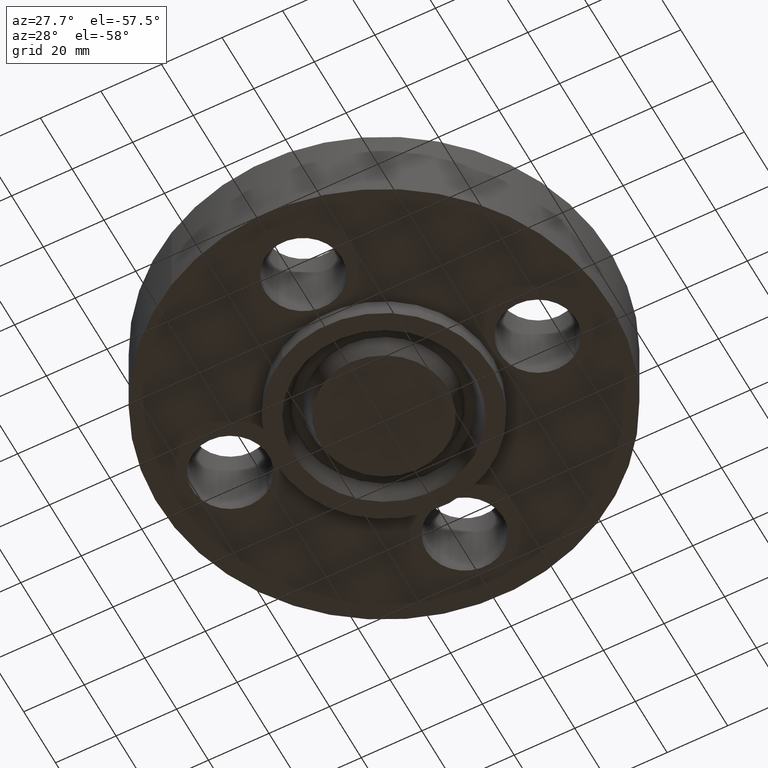
[diagram: clean part render]
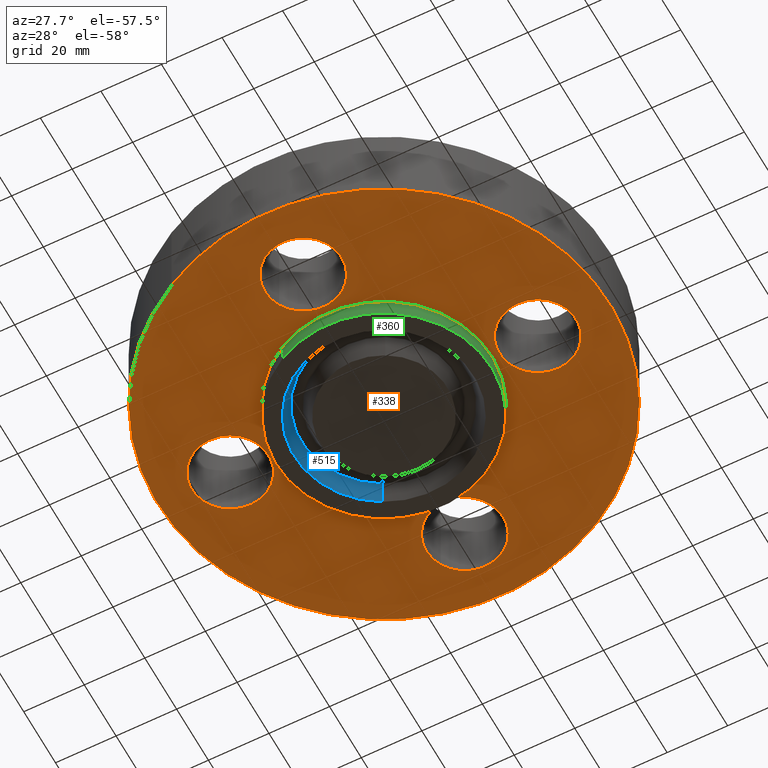
[diagram: same view with three faces highlighted in distinct colors, each labeled with its STEP entity id]
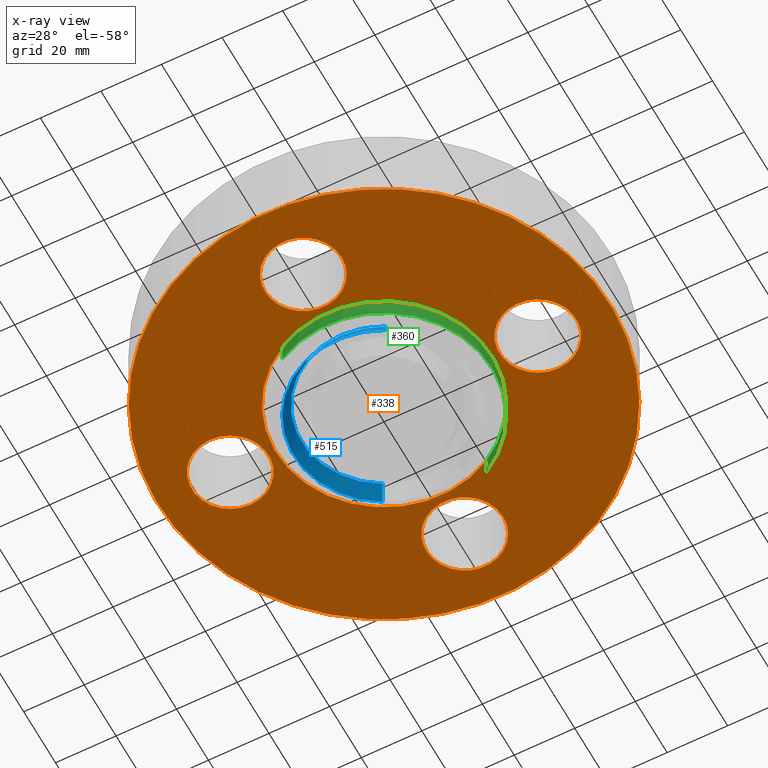
[diagram: x-ray of the same camera — body ghosted, the three highlighted faces saturated]
A machine part, auxiliary view with three faces highlighted in distinct colors.
The next image is the same camera in x-ray (body ghosted, the three faces saturated) — at least one of them is partly hidden behind the body in this view.
Their STEP definitions:

[orange] entity #338 — the highlighted planar face has unit normal (0, 0, -1).
#112=AXIS2_PLACEMENT_3D('Circle Axis2P3D',#110,#111,$) ;
#138=AXIS2_PLACEMENT_3D('Circle Axis2P3D',#136,#137,$) ;
#169=AXIS2_PLACEMENT_3D('Circle Axis2P3D',#167,#168,$) ;
#195=AXIS2_PLACEMENT_3D('Circle Axis2P3D',#193,#194,$) ;
#226=AXIS2_PLACEMENT_3D('Circle Axis2P3D',#224,#225,$) ;
#252=AXIS2_PLACEMENT_3D('Circle Axis2P3D',#250,#251,$) ;
#270=AXIS2_PLACEMENT_3D('Plane Axis2P3D',#267,#268,#269) ;
#274=AXIS2_PLACEMENT_3D('Circle Axis2P3D',#272,#273,$) ;
#283=AXIS2_PLACEMENT_3D('Circle Axis2P3D',#281,#282,$) ;
#292=AXIS2_PLACEMENT_3D('Circle Axis2P3D',#290,#291,$) ;
#301=AXIS2_PLACEMENT_3D('Circle Axis2P3D',#299,#300,$) ;
#310=AXIS2_PLACEMENT_3D('Circle Axis2P3D',#308,#309,$) ;
#319=AXIS2_PLACEMENT_3D('Circle Axis2P3D',#317,#318,$) ;
#105=CARTESIAN_POINT('Vertex',(1.7602872307,-0.438791280947,0.)) ;
#110=CARTESIAN_POINT('Axis2P3D Location',(2.00000000001,1.22464679915E-016,0.)) ;
#114=CARTESIAN_POINT('Vertex',(2.23971276931,0.438791280947,0.)) ;
#136=CARTESIAN_POINT('Axis2P3D Location',(2.00000000001,1.22464679915E-016,0.)) ;
#162=CARTESIAN_POINT('Vertex',(-0.438791280947,-1.7602872307,0.)) ;
#167=CARTESIAN_POINT('Axis2P3D Location',(2.4492935983E-016,-2.00000000001,0.)) ;
#171=CARTESIAN_POINT('Vertex',(0.438791280947,-2.23971276931,0.)) ;
#193=CARTESIAN_POINT('Axis2P3D Location',(2.4492935983E-016,-2.00000000001,0.)) ;
#219=CARTESIAN_POINT('Vertex',(-1.7602872307,0.438791280947,0.)) ;
#224=CARTESIAN_POINT('Axis2P3D Location',(-2.00000000001,-3.67394039746E-016,0.)) ;
#228=CARTESIAN_POINT('Vertex',(-2.23971276931,-0.438791280947,0.)) ;
#250=CARTESIAN_POINT('Axis2P3D Location',(-2.00000000001,-3.67394039746E-016,0.)) ;
#267=CARTESIAN_POINT('Axis2P3D Location',(0.,1.40650000001,0.)) ;
#272=CARTESIAN_POINT('Axis2P3D Location',(0.,0.,0.)) ;
#276=CARTESIAN_POINT('Vertex',(-1.4095110835,-2.58009273197,2.09805925913E-016)) ;
#278=CARTESIAN_POINT('Vertex',(1.4095110835,2.58009273197,2.09805925913E-016)) ;
#281=CARTESIAN_POINT('Axis2P3D Location',(0.,0.,0.)) ;
#290=CARTESIAN_POINT('Axis2P3D Location',(0.,2.00000000001,0.)) ;
#294=CARTESIAN_POINT('Vertex',(0.438791280947,1.7602872307,0.)) ;
#296=CARTESIAN_POINT('Vertex',(-0.438791280947,2.23971276931,0.)) ;
#299=CARTESIAN_POINT('Axis2P3D Location',(5.24514814784E-017,2.00000000001,0.)) ;
#308=CARTESIAN_POINT('Axis2P3D Location',(0.,0.,0.)) ;
#312=CARTESIAN_POINT('Vertex',(0.67431202005,1.2343198733,6.99353086378E-017)) ;
#314=CARTESIAN_POINT('Vertex',(-0.67431202005,-1.2343198733,6.99353086378E-017)) ;
#317=CARTESIAN_POINT('Axis2P3D Location',(0.,0.,0.)) ;
#111=DIRECTION('Axis2P3D Direction',(0.,-0.,-0.0393700787402)) ;
#137=DIRECTION('Axis2P3D Direction',(0.,-0.,-0.0393700787402)) ;
#168=DIRECTION('Axis2P3D Direction',(-0.,0.,-0.0393700787402)) ;
#194=DIRECTION('Axis2P3D Direction',(-0.,0.,-0.0393700787402)) ;
#225=DIRECTION('Axis2P3D Direction',(0.,0.,-0.0393700787402)) ;
#251=DIRECTION('Axis2P3D Direction',(0.,0.,-0.0393700787402)) ;
#268=DIRECTION('Axis2P3D Direction',(0.,0.,-0.0393700787402)) ;
#269=DIRECTION('Axis2P3D XDirection',(0.0393700787402,0.,0.)) ;
#273=DIRECTION('Axis2P3D Direction',(0.,0.,-0.0393700787402)) ;
#282=DIRECTION('Axis2P3D Direction',(0.,0.,-0.0393700787402)) ;
#291=DIRECTION('Axis2P3D Direction',(0.,0.,-0.0393700787402)) ;
#300=DIRECTION('Axis2P3D Direction',(0.,0.,-0.0393700787402)) ;
#309=DIRECTION('Axis2P3D Direction',(0.,0.,-0.0393700787402)) ;
#318=DIRECTION('Axis2P3D Direction',(0.,0.,-0.0393700787402)) ;
#287=ORIENTED_EDGE('',*,*,#280,.T.) ;
#288=ORIENTED_EDGE('',*,*,#285,.T.) ;
#305=ORIENTED_EDGE('',*,*,#298,.F.) ;
#306=ORIENTED_EDGE('',*,*,#303,.F.) ;
#323=ORIENTED_EDGE('',*,*,#316,.F.) ;
#324=ORIENTED_EDGE('',*,*,#321,.F.) ;
#327=ORIENTED_EDGE('',*,*,#140,.F.) ;
#328=ORIENTED_EDGE('',*,*,#116,.F.) ;
#331=ORIENTED_EDGE('',*,*,#197,.F.) ;
#332=ORIENTED_EDGE('',*,*,#173,.F.) ;
#335=ORIENTED_EDGE('',*,*,#254,.F.) ;
#336=ORIENTED_EDGE('',*,*,#230,.F.) ;
#307=FACE_BOUND('',#304,.T.) ;
#325=FACE_BOUND('',#322,.T.) ;
#329=FACE_BOUND('',#326,.T.) ;
#333=FACE_BOUND('',#330,.T.) ;
#337=FACE_BOUND('',#334,.T.) ;
#338=ADVANCED_FACE('PartBody',(#289,#307,#325,#329,#333,#337),#271,.T.) ;
#113=CIRCLE('generated circle',#112,0.500000000002) ;
#139=CIRCLE('generated circle',#138,0.500000000002) ;
#170=CIRCLE('generated circle',#169,0.500000000002) ;
#196=CIRCLE('generated circle',#195,0.500000000002) ;
#227=CIRCLE('generated circle',#226,0.500000000002) ;
#253=CIRCLE('generated circle',#252,0.500000000002) ;
#275=CIRCLE('generated circle',#274,2.94000000001) ;
#284=CIRCLE('generated circle',#283,2.94000000001) ;
#293=CIRCLE('generated circle',#292,0.500000000002) ;
#302=CIRCLE('generated circle',#301,0.500000000002) ;
#311=CIRCLE('generated circle',#310,1.40650000001) ;
#320=CIRCLE('generated circle',#319,1.40650000001) ;
#116=EDGE_CURVE('',#106,#115,#113,.T.) ;
#140=EDGE_CURVE('',#115,#106,#139,.T.) ;
#173=EDGE_CURVE('',#163,#172,#170,.T.) ;
#197=EDGE_CURVE('',#172,#163,#196,.T.) ;
#230=EDGE_CURVE('',#220,#229,#227,.T.) ;
#254=EDGE_CURVE('',#229,#220,#253,.T.) ;
#280=EDGE_CURVE('',#277,#279,#275,.T.) ;
#285=EDGE_CURVE('',#279,#277,#284,.T.) ;
#298=EDGE_CURVE('',#295,#297,#293,.T.) ;
#303=EDGE_CURVE('',#297,#295,#302,.T.) ;
#316=EDGE_CURVE('',#313,#315,#311,.T.) ;
#321=EDGE_CURVE('',#315,#313,#320,.T.) ;
#286=EDGE_LOOP('',(#287,#288)) ;
#304=EDGE_LOOP('',(#305,#306)) ;
#322=EDGE_LOOP('',(#323,#324)) ;
#326=EDGE_LOOP('',(#327,#328)) ;
#330=EDGE_LOOP('',(#331,#332)) ;
#334=EDGE_LOOP('',(#335,#336)) ;
#289=FACE_OUTER_BOUND('',#286,.T.) ;
#271=PLANE('',#270) ;
#106=VERTEX_POINT('',#105) ;
#115=VERTEX_POINT('',#114) ;
#163=VERTEX_POINT('',#162) ;
#172=VERTEX_POINT('',#171) ;
#220=VERTEX_POINT('',#219) ;
#229=VERTEX_POINT('',#228) ;
#277=VERTEX_POINT('',#276) ;
#279=VERTEX_POINT('',#278) ;
#295=VERTEX_POINT('',#294) ;
#297=VERTEX_POINT('',#296) ;
#313=VERTEX_POINT('',#312) ;
#315=VERTEX_POINT('',#314) ;

[blue] entity #515 — the highlighted conical surface has half-angle 23 deg.
#79=AXIS2_PLACEMENT_3D('Circle Axis2P3D',#77,#78,$) ;
#461=AXIS2_PLACEMENT_3D('Circle Axis2P3D',#459,#460,$) ;
#497=AXIS2_PLACEMENT_3D('Cone Axis2P3D',#494,#495,#496) ;
#77=CARTESIAN_POINT('Axis2P3D Location',(-1.04902962957E-016,2.79741234551E-016,-0.250000000001)) ;
#81=CARTESIAN_POINT('Vertex',(0.561886731246,-1.02852676254,-0.250000000001)) ;
#83=CARTESIAN_POINT('Vertex',(-0.561886731246,1.02852676254,-0.250000000001)) ;
#459=CARTESIAN_POINT('Axis2P3D Location',(0.,0.,-0.0188873350169)) ;
#463=CARTESIAN_POINT('Vertex',(-0.514854363898,0.942434591585,-0.0188873350169)) ;
#465=CARTESIAN_POINT('Vertex',(0.514854363898,-0.942434591585,-0.0188873350169)) ;
#494=CARTESIAN_POINT('Axis2P3D Location',(0.,0.,-0.0188873350169)) ;
#499=CARTESIAN_POINT('Line Origine',(-0.538370547572,0.985480677062,-0.134443667509)) ;
#504=CARTESIAN_POINT('Line Origine',(0.538370547572,-0.985480677062,-0.134443667509)) ;
#78=DIRECTION('Axis2P3D Direction',(0.,0.,-0.0393700787402)) ;
#460=DIRECTION('Axis2P3D Direction',(0.,0.,0.0393700787402)) ;
#495=DIRECTION('Axis2P3D Direction',(-0.,-0.,-0.0393700787402)) ;
#496=DIRECTION('Axis2P3D XDirection',(-0.0188750212049,0.0345504945626,0.)) ;
#500=DIRECTION('Vector Direction',(-0.00737505833565,0.0134999537303,-0.0362403485611)) ;
#505=DIRECTION('Vector Direction',(0.00737505833565,-0.0134999537303,-0.0362403485611)) ;
#501=VECTOR('Line Direction',#500,0.0393700787402) ;
#506=VECTOR('Line Direction',#505,0.0393700787402) ;
#510=ORIENTED_EDGE('',*,*,#85,.T.) ;
#511=ORIENTED_EDGE('',*,*,#503,.T.) ;
#512=ORIENTED_EDGE('',*,*,#467,.T.) ;
#513=ORIENTED_EDGE('',*,*,#508,.F.) ;
#515=ADVANCED_FACE('PartBody',(#514),#498,.F.) ;
#80=CIRCLE('generated circle',#79,1.172) ;
#462=CIRCLE('generated circle',#461,1.07389849401) ;
#498=CONICAL_SURFACE('Cone',#497,1.07389849401,0.401425727959) ;
#85=EDGE_CURVE('',#82,#84,#80,.T.) ;
#467=EDGE_CURVE('',#464,#466,#462,.T.) ;
#503=EDGE_CURVE('',#84,#464,#502,.F.) ;
#508=EDGE_CURVE('',#82,#466,#507,.F.) ;
#509=EDGE_LOOP('',(#510,#511,#512,#513)) ;
#514=FACE_OUTER_BOUND('',#509,.T.) ;
#502=LINE('Line',#499,#501) ;
#507=LINE('Line',#504,#506) ;
#82=VERTEX_POINT('',#81) ;
#84=VERTEX_POINT('',#83) ;
#464=VERTEX_POINT('',#463) ;
#466=VERTEX_POINT('',#465) ;

[green] entity #360 — the highlighted cylindrical surface (partial cylindrical patch) has radius 35.7251 mm, axis along (0, 0, -1).
#61=AXIS2_PLACEMENT_3D('Circle Axis2P3D',#59,#60,$) ;
#310=AXIS2_PLACEMENT_3D('Circle Axis2P3D',#308,#309,$) ;
#342=AXIS2_PLACEMENT_3D('Cylinder Axis2P3D',#339,#340,#341) ;
#59=CARTESIAN_POINT('Axis2P3D Location',(0.,0.,-0.250000000001)) ;
#63=CARTESIAN_POINT('Vertex',(0.67431202005,1.2343198733,-0.250000000001)) ;
#65=CARTESIAN_POINT('Vertex',(-0.67431202005,-1.2343198733,-0.250000000001)) ;
#308=CARTESIAN_POINT('Axis2P3D Location',(0.,0.,0.)) ;
#312=CARTESIAN_POINT('Vertex',(0.67431202005,1.2343198733,6.99353086378E-017)) ;
#314=CARTESIAN_POINT('Vertex',(-0.67431202005,-1.2343198733,6.99353086378E-017)) ;
#339=CARTESIAN_POINT('Axis2P3D Location',(0.,0.,0.435000000002)) ;
#344=CARTESIAN_POINT('Line Origine',(0.67431202005,1.2343198733,-0.125)) ;
#349=CARTESIAN_POINT('Line Origine',(-0.67431202005,-1.2343198733,-0.125)) ;
#60=DIRECTION('Axis2P3D Direction',(0.,0.,-0.0393700787402)) ;
#309=DIRECTION('Axis2P3D Direction',(0.,0.,-0.0393700787402)) ;
#340=DIRECTION('Axis2P3D Direction',(0.,0.,-0.0393700787402)) ;
#341=DIRECTION('Axis2P3D XDirection',(-0.0188750212049,-0.0345504945626,0.)) ;
#345=DIRECTION('Vector Direction',(0.,0.,-0.0393700787402)) ;
#350=DIRECTION('Vector Direction',(0.,0.,-0.0393700787402)) ;
#346=VECTOR('Line Direction',#345,0.0393700787402) ;
#351=VECTOR('Line Direction',#350,0.0393700787402) ;
#355=ORIENTED_EDGE('',*,*,#67,.F.) ;
#356=ORIENTED_EDGE('',*,*,#348,.T.) ;
#357=ORIENTED_EDGE('',*,*,#316,.T.) ;
#358=ORIENTED_EDGE('',*,*,#353,.F.) ;
#360=ADVANCED_FACE('PartBody',(#359),#343,.T.) ;
#62=CIRCLE('generated circle',#61,1.40650000001) ;
#311=CIRCLE('generated circle',#310,1.40650000001) ;
#343=CYLINDRICAL_SURFACE('generated cylinder',#342,1.40650000001) ;
#67=EDGE_CURVE('',#64,#66,#62,.T.) ;
#316=EDGE_CURVE('',#313,#315,#311,.T.) ;
#348=EDGE_CURVE('',#64,#313,#347,.F.) ;
#353=EDGE_CURVE('',#66,#315,#352,.F.) ;
#354=EDGE_LOOP('',(#355,#356,#357,#358)) ;
#359=FACE_OUTER_BOUND('',#354,.T.) ;
#347=LINE('Line',#344,#346) ;
#352=LINE('Line',#349,#351) ;
#64=VERTEX_POINT('',#63) ;
#66=VERTEX_POINT('',#65) ;
#313=VERTEX_POINT('',#312) ;
#315=VERTEX_POINT('',#314) ;